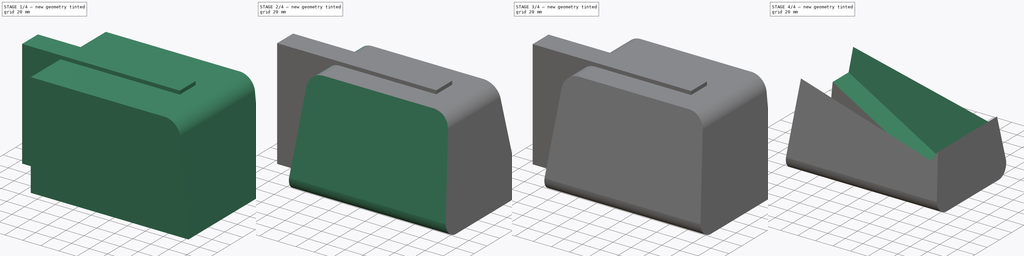
[diagram: build sequence overview — one tinted view per stage of 4, left to right]
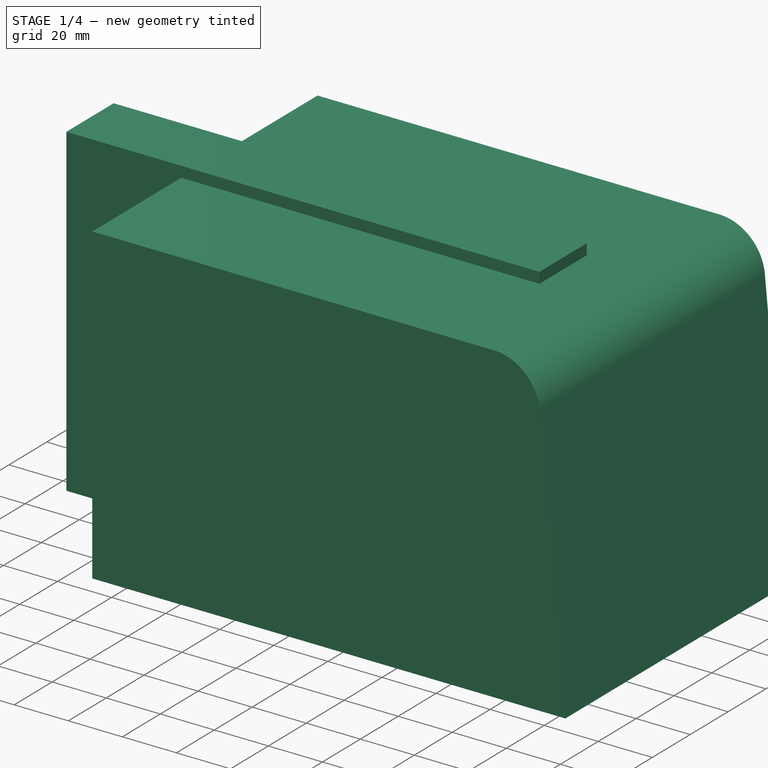
[diagram: stage 1 of 4 — iso view after this stage's code; geometry added in this stage tinted green]
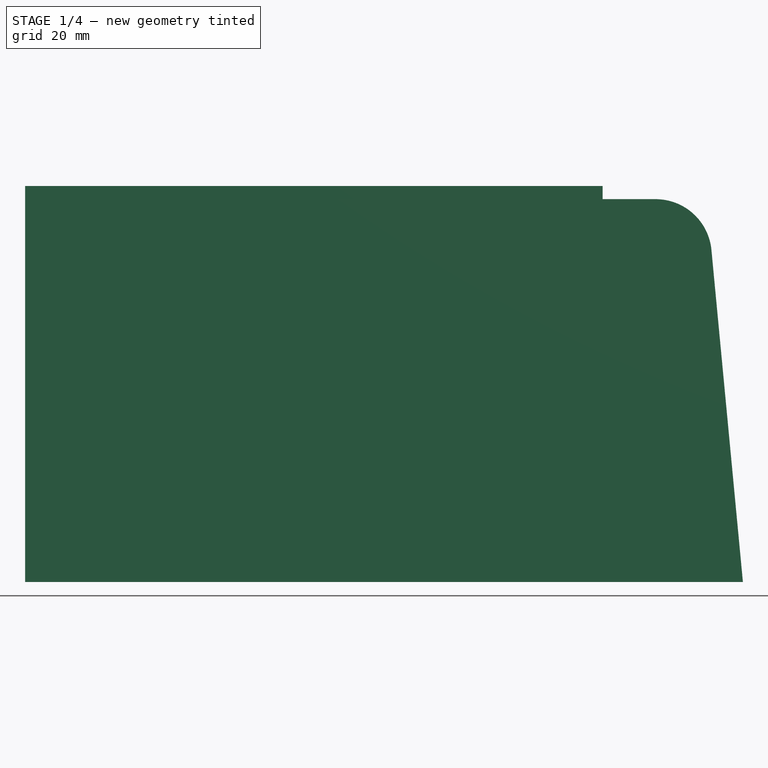
[diagram: stage 1 of 4 — front view after this stage's code; geometry added in this stage tinted green]
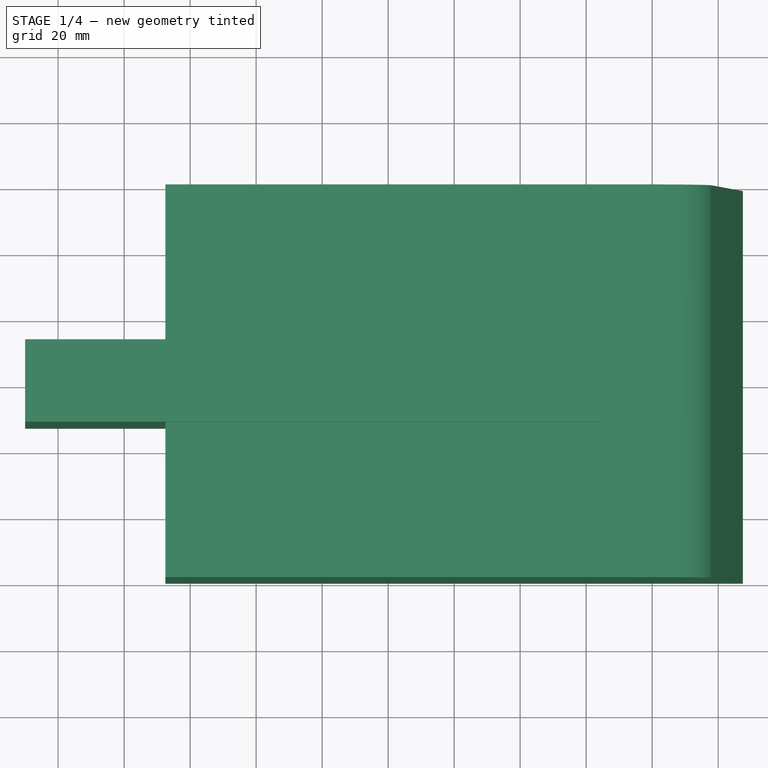
[diagram: stage 1 of 4 — top view after this stage's code; geometry added in this stage tinted green]
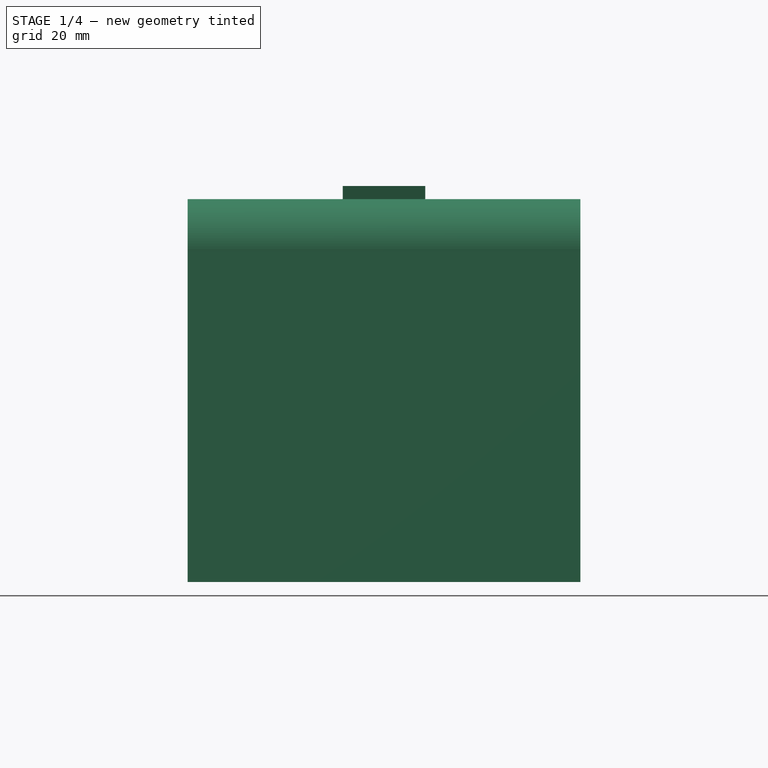
[diagram: stage 1 of 4 — right view after this stage's code; geometry added in this stage tinted green]
FCSTD DOCUMENT  (FreeCAD 0.20R29603 (Git))
Label: Yamacha-NS-P41-toAtmos-v2
License: All rights reserved
LicenseURL: http://en.wikipedia.org/wiki/All_rights_reserved
objects: Sketcher::SketchObject×7, PartDesign::Pocket×4, PartDesign::Mirrored×4, PartDesign::Pad×3, PartDesign::Body×3, Part::Cut×2
note: 30 computed .brp shape members not serialized (recipe doc carries the construction recipe); baked Part::Feature solids carry a one-line shape summary decoded from their .brp

FEATURE [PartDesign::Body] Body  label="Handler"
  Group = -> [Sketch,Pad,Sketch001,Pocket,Mirrored,Sketch002,Pocket001,Mirrored001]
  Origin = -> Origin
  Tip = -> Mirrored001
FEATURE [Sketcher::SketchObject] Sketch003
  FullyConstrained = true
  MapMode = 5
  Support = -> [XY_Plane001]
  sketch-geometry (4):
    g0: LineSegment StartX=-87.5 StartY=59.5 StartZ=0 EndX=87.5 EndY=59.5 EndZ=0
    g1: LineSegment StartX=87.5 StartY=59.5 StartZ=0 EndX=87.5 EndY=-59.5 EndZ=0
    g2: LineSegment StartX=87.5 StartY=-59.5 StartZ=0 EndX=-87.5 EndY=-59.5 EndZ=0
    g3: LineSegment StartX=-87.5 StartY=-59.5 StartZ=0 EndX=-87.5 EndY=59.5 EndZ=0
  constraints (10):
    c: Coincident(g0,g1)
    c: Coincident(g1,g2)
    c: Coincident(g2,g3)
    c: Coincident(g3,g0)
    c: Horizontal(g2)
    c: Vertical(g3)
    c: Symmetric(g0,g1,g-1)
    c: Symmetric(g0,g0,g-2)
    c: DistanceX(g0,g0) = 175
    c: DistanceY(g1,g1) = 119
FEATURE [PartDesign::Pad] Pad001
  Direction = (0,0,1)
  Length = 116
  Length2 = 10
  Profile = -> Sketch003
  ReferenceAxis = -> Sketch003 [N_Axis]
  Type = 0
FEATURE [Sketcher::SketchObject] Sketch004
  ExternalGeometry = -> [Pad001]
  FullyConstrained = true
  MapMode = 5
  Placement = pos=(0,-59.5,0) rot=(1,0,0;1.5708rad)
  Support = -> [Pad001]
  sketch-geometry (7):
    g0: GeomPoint X=76.5 Y=116 Z=0
    g1: GeomPoint X=61.5 Y=116 Z=0
    g2: LineSegment StartX=76.5 StartY=116 StartZ=0 EndX=87.5 EndY=0 EndZ=0
    g3: ArcOfCircle CenterX=61.0439 CenterY=99.0061 CenterZ=0 NormalX=0 NormalY=0 NormalZ=1 AngleXU=0 Radius=17 StartAngle=0.0627079 EndAngle=1.54396
    g4: LineSegment StartX=78.0105 StartY=100.071 StartZ=0 EndX=87.5 EndY=0 EndZ=0
    g5: LineSegment StartX=87.5 StartY=0 StartZ=0 EndX=87.5 EndY=116 EndZ=0
    g6: LineSegment StartX=87.5 StartY=116 StartZ=0 EndX=61.5 EndY=116 EndZ=0
  constraints (16):
    c: PointOnObject(g0,g-3)
    c: PointOnObject(g1,g-3)
    c: DistanceX(g0,g-4) = 11
    c: DistanceX(g1,g-4) = 26
    c: Coincident(g2,g0)
    c: Coincident(g2,g-4)
    c: Coincident(g3,g1)
    c: PointOnObject(g3,g2)
    c: Radius(g3) = 17
    c: Distance(g0,g3) = 16
    c: Coincident(g4,g3)
    c: Coincident(g4,g2)
    c: Coincident(g5,g4)
    c: Coincident(g5,g-4)
    c: Coincident(g6,g5)
    c: Coincident(g6,g3)
FEATURE [PartDesign::Pocket] Pocket002
  BaseFeature = -> Pad001
  Direction = (0,1,-2e-16)
  Length = 5
  Length2 = 5
  Profile = -> Sketch004
  ReferenceAxis = -> Sketch004 [N_Axis]
  Type = 2
FEATURE [PartDesign::Pad] Pad002
  Direction = (0,0,1)
  Length = 120
  Length2 = 10
  Profile = -> Sketch006
  ReferenceAxis = -> Sketch006 [N_Axis]
  Type = 0
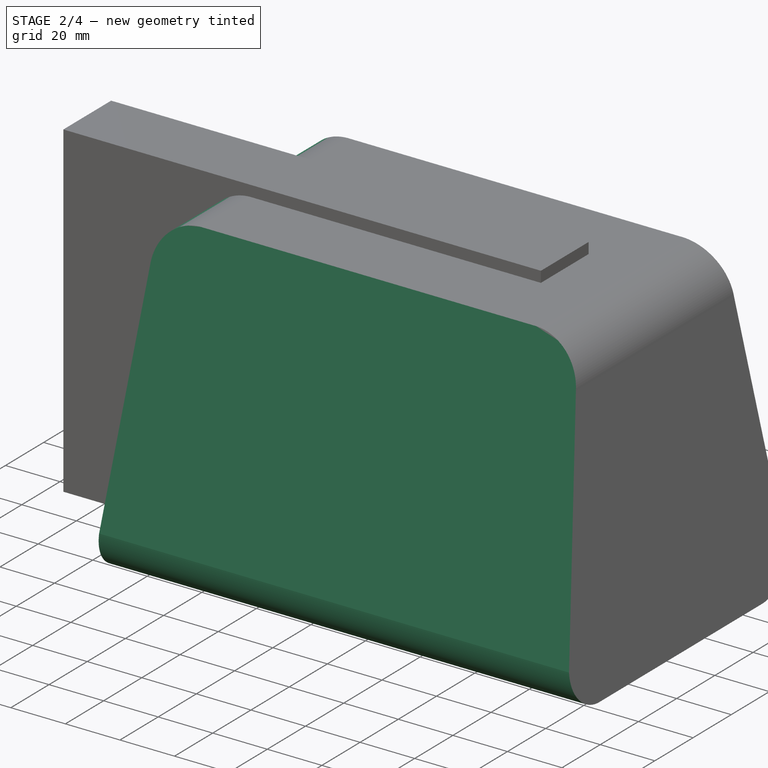
[diagram: stage 2 of 4 — iso view after this stage's code; geometry added in this stage tinted green]
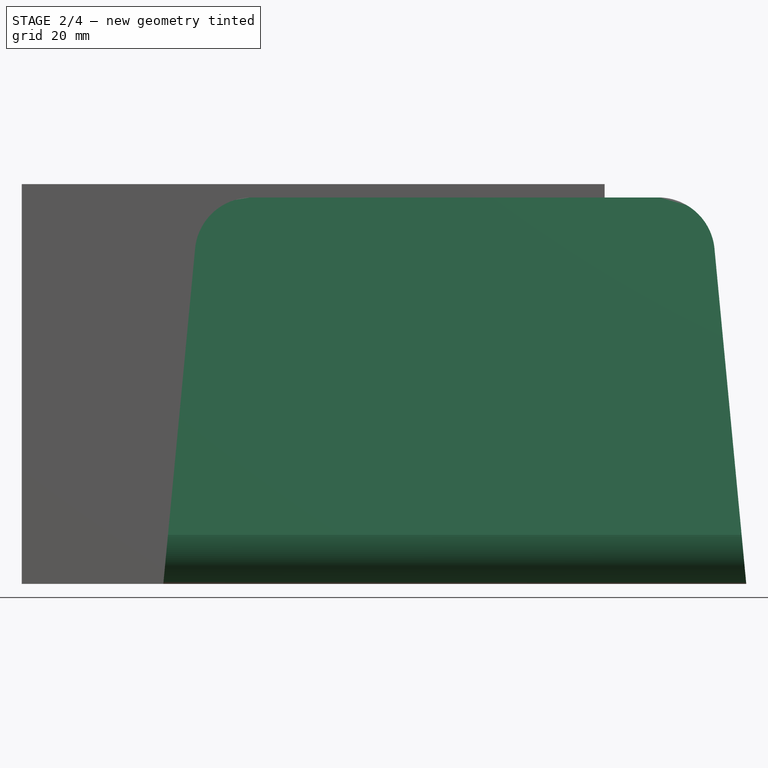
[diagram: stage 2 of 4 — front view after this stage's code; geometry added in this stage tinted green]
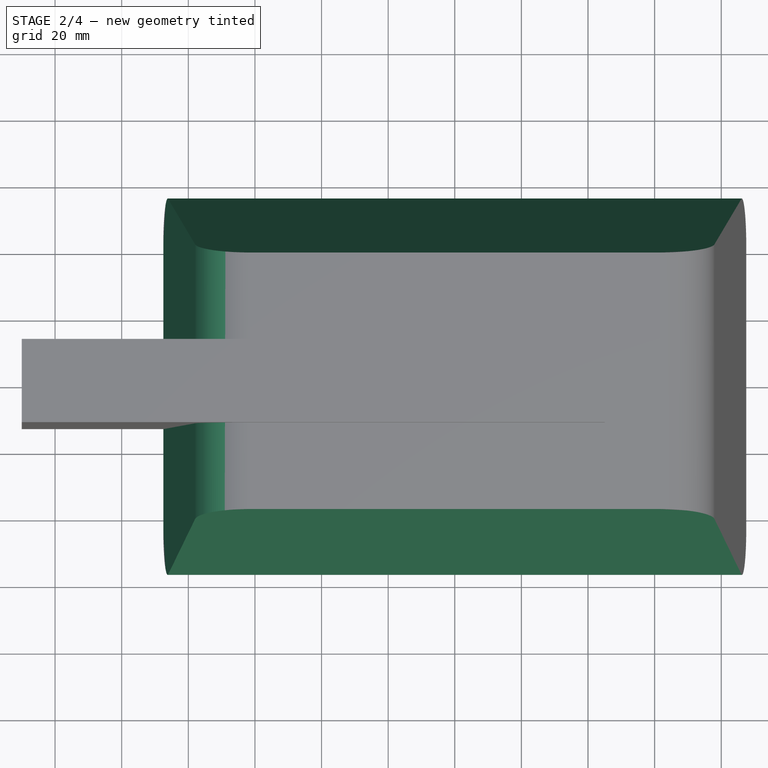
[diagram: stage 2 of 4 — top view after this stage's code; geometry added in this stage tinted green]
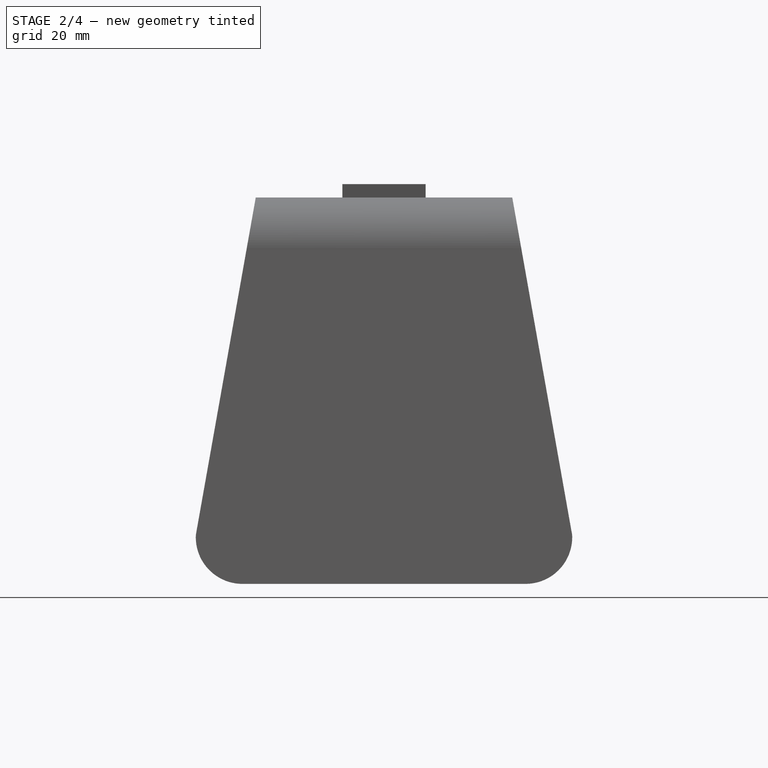
[diagram: stage 2 of 4 — right view after this stage's code; geometry added in this stage tinted green]
FEATURE [PartDesign::Mirrored] Mirrored002
  BaseFeature = -> Pocket002
  MirrorPlane = -> Sketch004 [V_Axis]
  Originals = -> [Pocket002]
FEATURE [Sketcher::SketchObject] Sketch005
  ExternalGeometry = -> [Mirrored002]
  FullyConstrained = true
  MapMode = 5
  Placement = pos=(0,0,0) rot=(0.57735,0.57735,0.57735;2.0944rad)
  Support = -> [YZ_Plane001]
  sketch-geometry (6):
    g0: GeomPoint X=-38.5 Y=116 Z=0
    g1: LineSegment StartX=-38.5 StartY=116 StartZ=0 EndX=-59.5 EndY=116 EndZ=0
    g2: LineSegment StartX=-59.5 StartY=116 StartZ=0 EndX=-59.5 EndY=-4.26e-14 EndZ=0
    g3: ArcOfCircle CenterX=-42.5 CenterY=14 CenterZ=0 NormalX=0 NormalY=0 NormalZ=1 AngleXU=0 Radius=14 StartAngle=3.09204 EndAngle=4.71239
    g4: LineSegment StartX=-38.5 StartY=116 StartZ=0 EndX=-56.4828 EndY=14.6934 EndZ=0
    g5: LineSegment StartX=-59.5 StartY=-4.26e-14 StartZ=0 EndX=-42.5 EndY=-3.61e-14 EndZ=0
  constraints (15):
    c: PointOnObject(g0,g-3)
    c: DistanceX(g-5,g0) = 21
    c: Coincident(g1,g0)
    c: Coincident(g1,g-5)
    c: Coincident(g2,g1)
    c: Coincident(g2,g-4)
    c: PointOnObject(g3,g-6)
    c: Distance(g3,g2) = 15
    c: DistanceX(g2,g3) = 17
    c: Radius(g3) = 14
    c: Coincident(g4,g1)
    c: Coincident(g4,g3)
    c: Coincident(g5,g2)
    c: Coincident(g5,g3)
    c: Tangent(g5,g3)
FEATURE [PartDesign::Pocket] Pocket003
  BaseFeature = -> Mirrored002
  Direction = (-1,2e-16,-3e-16)
  Length = 5
  Length2 = 5
  Midplane = true
  Profile = -> Sketch005
  ReferenceAxis = -> Sketch005 [N_Axis]
  Type = 1
FEATURE [PartDesign::Mirrored] Mirrored003
  BaseFeature = -> Pocket003
  MirrorPlane = -> Sketch005 [V_Axis]
  Originals = -> [Pocket003]
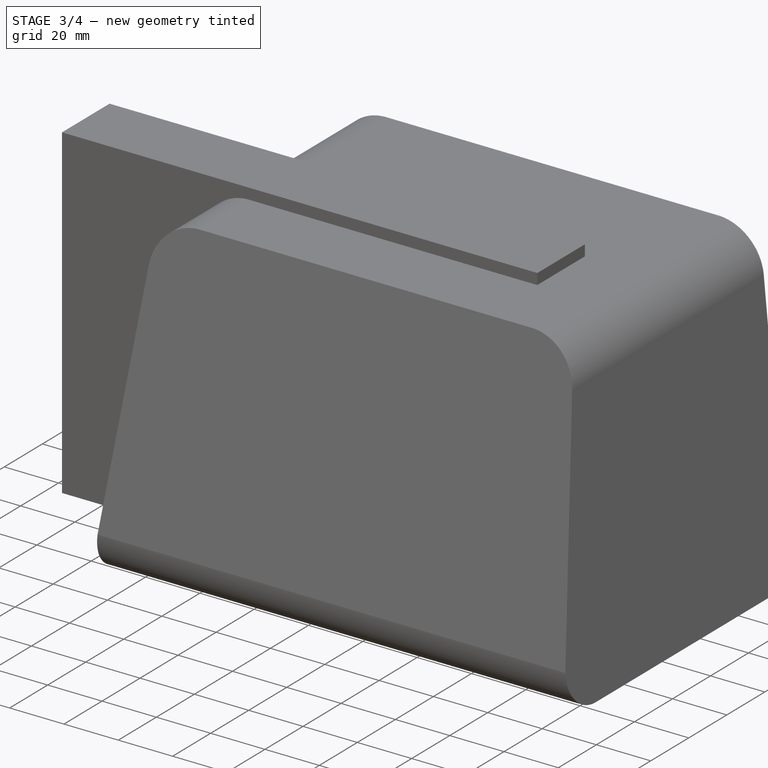
[diagram: stage 3 of 4 — iso view after this stage's code; geometry added in this stage tinted green]
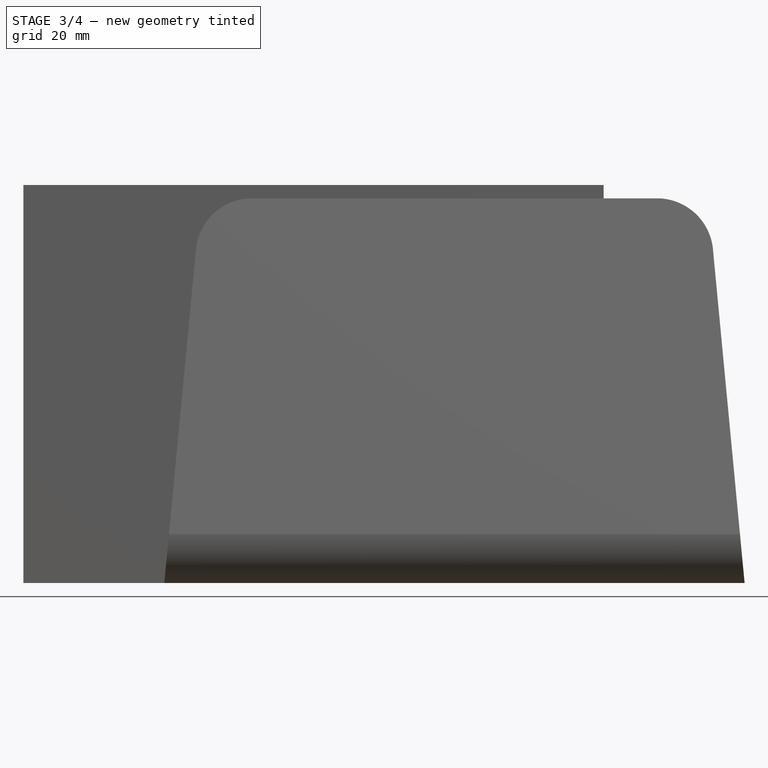
[diagram: stage 3 of 4 — front view after this stage's code; geometry added in this stage tinted green]
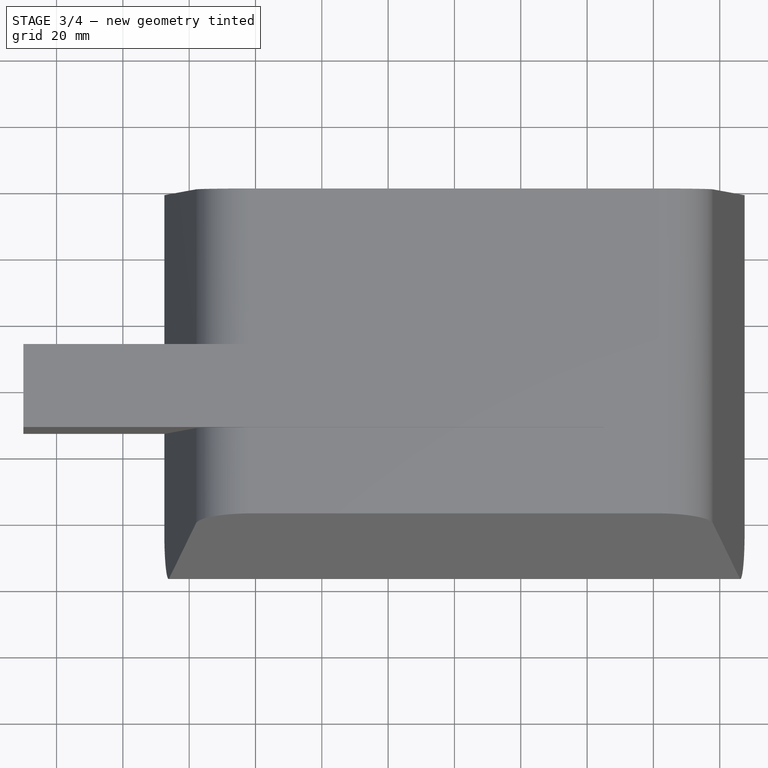
[diagram: stage 3 of 4 — top view after this stage's code; geometry added in this stage tinted green]
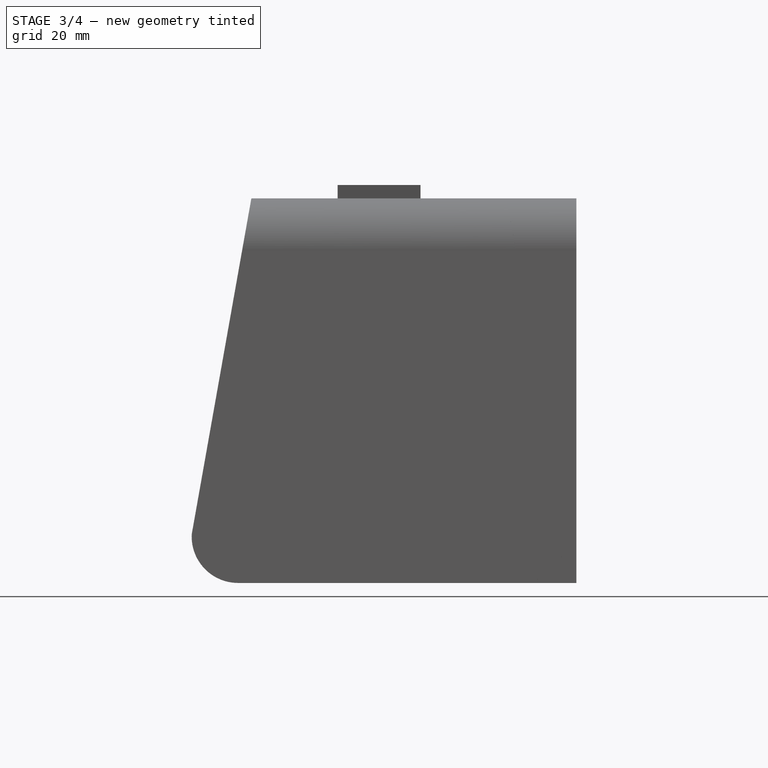
[diagram: stage 3 of 4 — right view after this stage's code; geometry added in this stage tinted green]
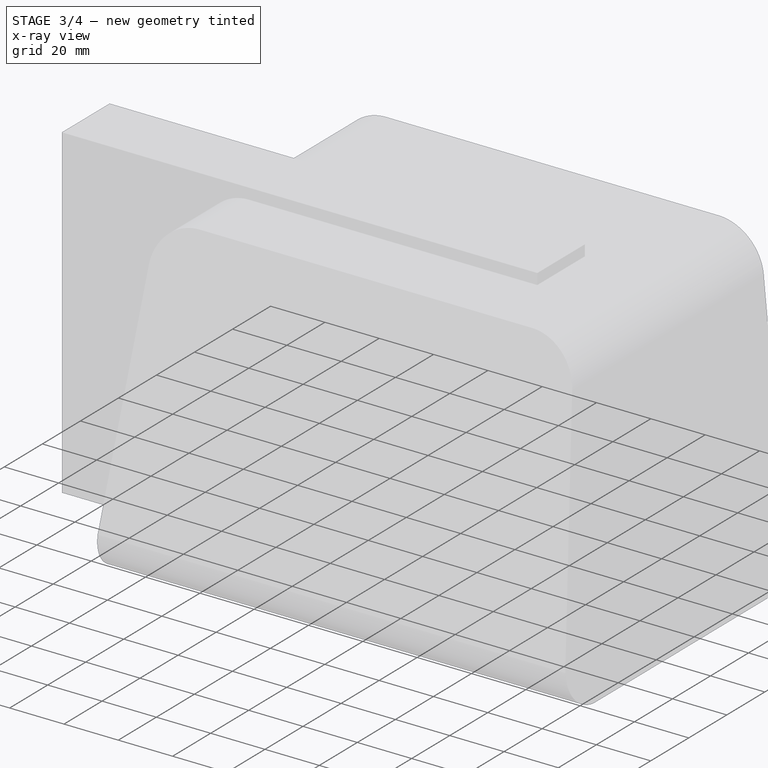
[diagram: stage 3 of 4 — x-ray composite at the iso view; earlier geometry ghosted, this stage's added geometry solid]
FEATURE [Sketcher::SketchObject] Sketch
  FullyConstrained = true
  MapMode = 5
  Support = -> [XY_Plane]
  sketch-geometry (4):
    g0: LineSegment StartX=-87.5 StartY=59.5 StartZ=0 EndX=87.5 EndY=59.5 EndZ=0
    g1: LineSegment StartX=87.5 StartY=59.5 StartZ=0 EndX=87.5 EndY=-59.5 EndZ=0
    g2: LineSegment StartX=87.5 StartY=-59.5 StartZ=0 EndX=-87.5 EndY=-59.5 EndZ=0
    g3: LineSegment StartX=-87.5 StartY=-59.5 StartZ=0 EndX=-87.5 EndY=59.5 EndZ=0
  constraints (10):
    c: Coincident(g0,g1)
    c: Coincident(g1,g2)
    c: Coincident(g2,g3)
    c: Coincident(g3,g0)
    c: Horizontal(g2)
    c: Vertical(g3)
    c: Symmetric(g0,g1,g-1)
    c: Symmetric(g0,g0,g-2)
    c: DistanceX(g0,g0) = 175
    c: DistanceY(g1,g1) = 119
FEATURE [PartDesign::Pad] Pad
  Direction = (0,0,1)
  Length = 116
  Length2 = 10
  Profile = -> Sketch
  ReferenceAxis = -> Sketch [N_Axis]
  Type = 0
FEATURE [Sketcher::SketchObject] Sketch001
  ExternalGeometry = -> [Pad]
  FullyConstrained = true
  MapMode = 5
  Placement = pos=(0,-59.5,0) rot=(1,0,0;1.5708rad)
  Support = -> [Pad]
  sketch-geometry (7):
    g0: GeomPoint X=76.5 Y=116 Z=0
    g1: GeomPoint X=61.5 Y=116 Z=0
    g2: LineSegment StartX=76.5 StartY=116 StartZ=0 EndX=87.5 EndY=0 EndZ=0
    g3: ArcOfCircle CenterX=61.0439 CenterY=99.0061 CenterZ=0 NormalX=0 NormalY=0 NormalZ=1 AngleXU=0 Radius=17 StartAngle=0.0627079 EndAngle=1.54396
    g4: LineSegment StartX=78.0105 StartY=100.071 StartZ=0 EndX=87.5 EndY=0 EndZ=0
    g5: LineSegment StartX=87.5 StartY=0 StartZ=0 EndX=87.5 EndY=116 EndZ=0
    g6: LineSegment StartX=87.5 StartY=116 StartZ=0 EndX=61.5 EndY=116 EndZ=0
  constraints (16):
    c: PointOnObject(g0,g-3)
    c: PointOnObject(g1,g-3)
    c: DistanceX(g0,g-4) = 11
    c: DistanceX(g1,g-4) = 26
    c: Coincident(g2,g0)
    c: Coincident(g2,g-4)
    c: Coincident(g3,g1)
    c: PointOnObject(g3,g2)
    c: Radius(g3) = 17
    c: Distance(g0,g3) = 16
    c: Coincident(g4,g3)
    c: Coincident(g4,g2)
    c: Coincident(g5,g4)
    c: Coincident(g5,g-4)
    c: Coincident(g6,g5)
    c: Coincident(g6,g3)
FEATURE [PartDesign::Pocket] Pocket
  BaseFeature = -> Pad
  Direction = (0,1,-2e-16)
  Length = 5
  Length2 = 5
  Profile = -> Sketch001
  ReferenceAxis = -> Sketch001 [N_Axis]
  Type = 2
FEATURE [PartDesign::Mirrored] Mirrored
  BaseFeature = -> Pocket
  MirrorPlane = -> Sketch001 [V_Axis]
  Originals = -> [Pocket]
FEATURE [Sketcher::SketchObject] Sketch002
  ExternalGeometry = -> [Mirrored]
  FullyConstrained = true
  MapMode = 5
  Placement = pos=(0,0,0) rot=(0.57735,0.57735,0.57735;2.0944rad)
  Support = -> [YZ_Plane]
  sketch-geometry (6):
    g0: GeomPoint X=-38.5 Y=116 Z=0
    g1: LineSegment StartX=-38.5 StartY=116 StartZ=0 EndX=-59.5 EndY=116 EndZ=0
    g2: LineSegment StartX=-59.5 StartY=116 StartZ=0 EndX=-59.5 EndY=-4.26e-14 EndZ=0
    g3: ArcOfCircle CenterX=-42.5 CenterY=14 CenterZ=0 NormalX=0 NormalY=0 NormalZ=1 AngleXU=0 Radius=14 StartAngle=3.09204 EndAngle=4.71239
    g4: LineSegment StartX=-38.5 StartY=116 StartZ=0 EndX=-56.4828 EndY=14.6934 EndZ=0
    g5: LineSegment StartX=-59.5 StartY=-4.26e-14 StartZ=0 EndX=-42.5 EndY=-3.61e-14 EndZ=0
  constraints (15):
    c: PointOnObject(g0,g-3)
    c: DistanceX(g-5,g0) = 21
    c: Coincident(g1,g0)
    c: Coincident(g1,g-5)
    c: Coincident(g2,g1)
    c: Coincident(g2,g-4)
    c: PointOnObject(g3,g-6)
    c: Distance(g3,g2) = 15
    c: DistanceX(g2,g3) = 17
    c: Radius(g3) = 14
    c: Coincident(g4,g1)
    c: Coincident(g4,g3)
    c: Coincident(g5,g2)
    c: Coincident(g5,g3)
    c: Tangent(g5,g3)
FEATURE [PartDesign::Pocket] Pocket001
  BaseFeature = -> Mirrored
  Direction = (-1,2e-16,-3e-16)
  Length = 5
  Length2 = 5
  Midplane = true
  Profile = -> Sketch002
  ReferenceAxis = -> Sketch002 [N_Axis]
  Type = 1
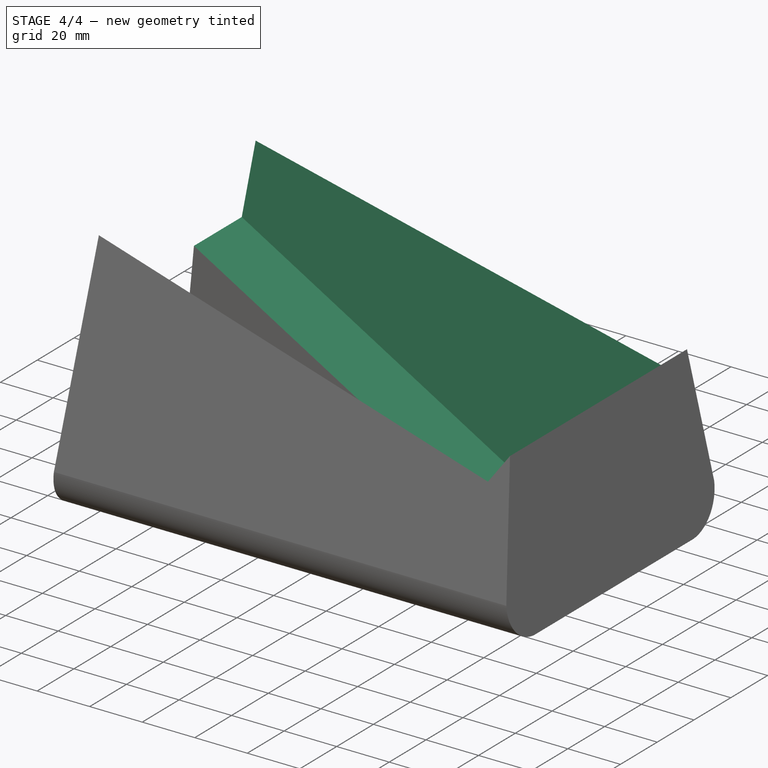
[diagram: stage 4 of 4 — iso view after this stage's code; geometry added in this stage tinted green]
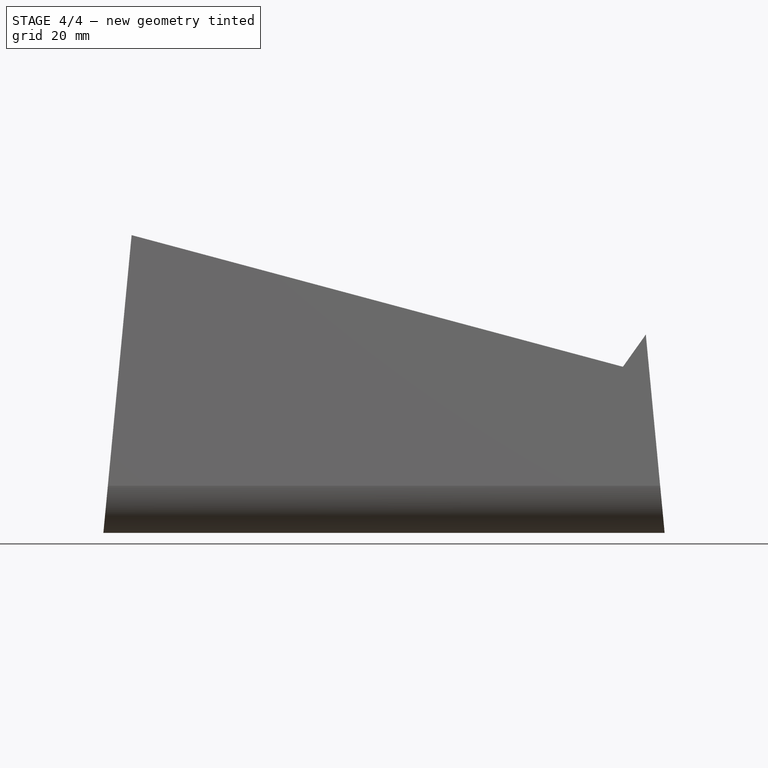
[diagram: stage 4 of 4 — front view after this stage's code; geometry added in this stage tinted green]
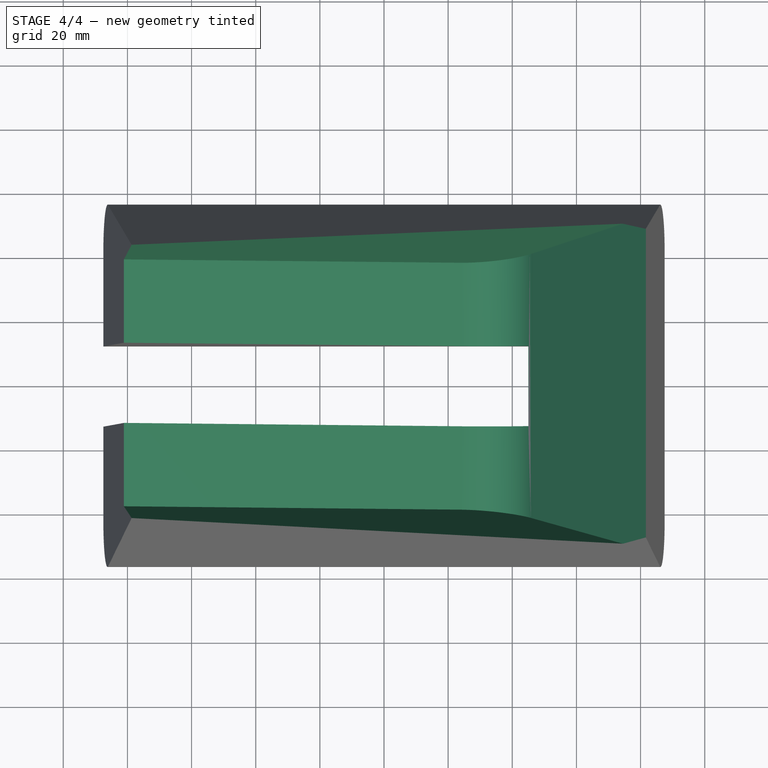
[diagram: stage 4 of 4 — top view after this stage's code; geometry added in this stage tinted green]
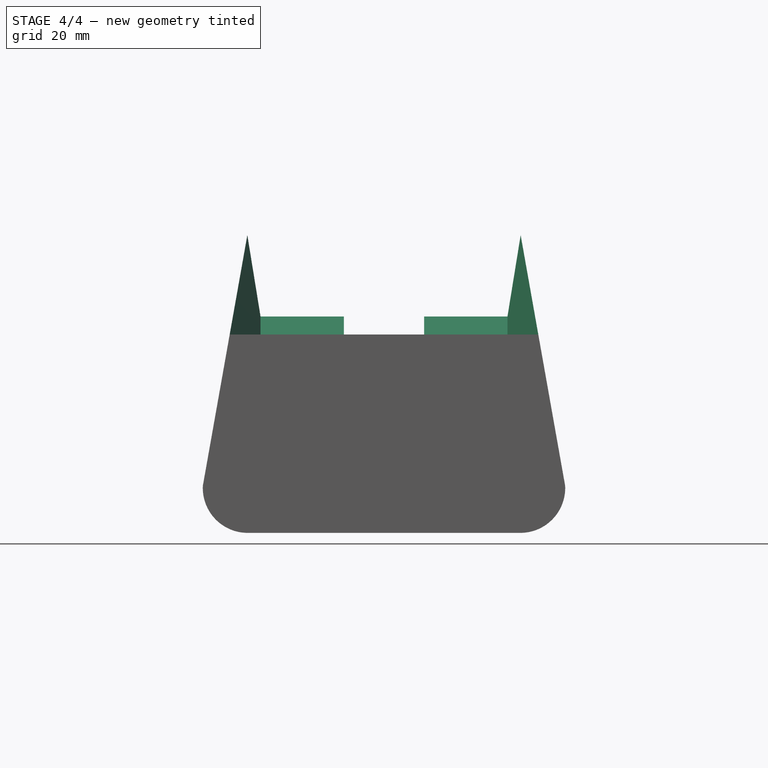
[diagram: stage 4 of 4 — right view after this stage's code; geometry added in this stage tinted green]
FEATURE [PartDesign::Mirrored] Mirrored001
  BaseFeature = -> Pocket001
  MirrorPlane = -> Sketch002 [V_Axis]
  Originals = -> [Pocket001]
FEATURE [PartDesign::Body] Body001  label="Speaker"
  Group = -> [Sketch003,Pad001,Sketch004,Pocket002,Mirrored002,Sketch005,Pocket003,Mirrored003]
  Origin = -> Origin001
  Placement = pos=(28.862,2.84e-14,137.939) rot=(0,-1,0;2.61804rad)
  Tip = -> Mirrored003
FEATURE [Sketcher::SketchObject] Sketch006
  FullyConstrained = true
  MapMode = 5
  Support = -> [XY_Plane002]
  sketch-geometry (4):
    g0: LineSegment StartX=-130 StartY=12.5 StartZ=0 EndX=45 EndY=12.5 EndZ=0
    g1: LineSegment StartX=45 StartY=12.5 StartZ=0 EndX=45 EndY=-12.5 EndZ=0
    g2: LineSegment StartX=45 StartY=-12.5 StartZ=0 EndX=-130 EndY=-12.5 EndZ=0
    g3: LineSegment StartX=-130 StartY=-12.5 StartZ=0 EndX=-130 EndY=12.5 EndZ=0
  constraints (11):
    c: Coincident(g0,g1)
    c: Coincident(g1,g2)
    c: Coincident(g2,g3)
    c: Coincident(g3,g0)
    c: Horizontal(g0)
    c: Horizontal(g2)
    c: Vertical(g3)
    c: DistanceY(g1,g1) = 25
    c: Symmetric(g0,g1,g-1)
    c: DistanceX(g0,g0) = 175
    c: DistanceX(g-1,g0) = 45
FEATURE [Part::Cut] Cut
  Base = -> Body
  Tool = -> Body001
FEATURE [PartDesign::Body] Body002  label="WireTunel"
  Group = -> [Sketch006,Pad002]
  Origin = -> Origin002
  Tip = -> Pad002
FEATURE [Part::Cut] Cut001
  Base = -> Cut
  Tool = -> Body002
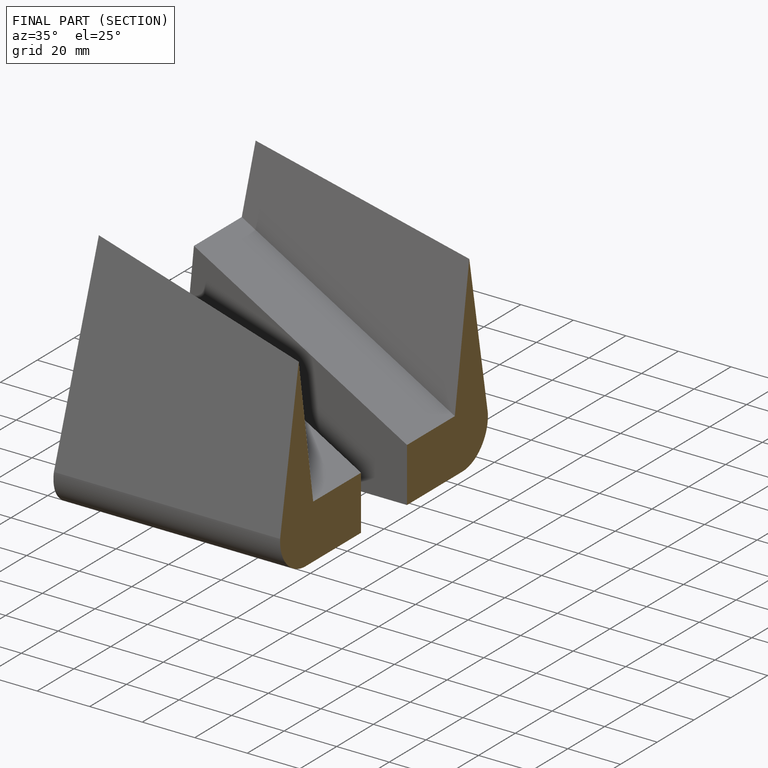
[diagram: finished part — half-section view (interior)]
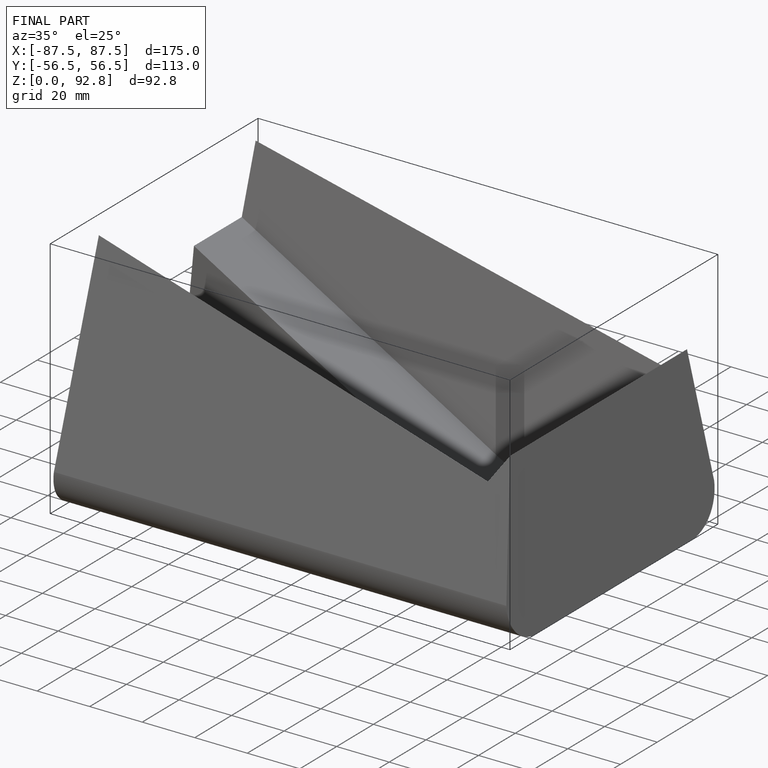
[diagram: finished part — iso view with bounding-box wireframe]
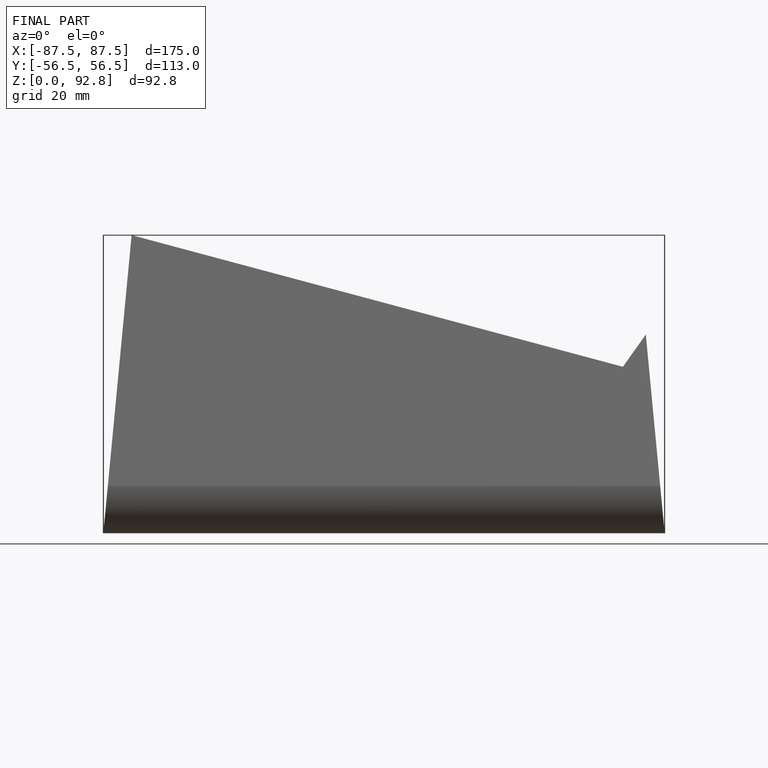
[diagram: finished part — front view with bounding-box wireframe]
